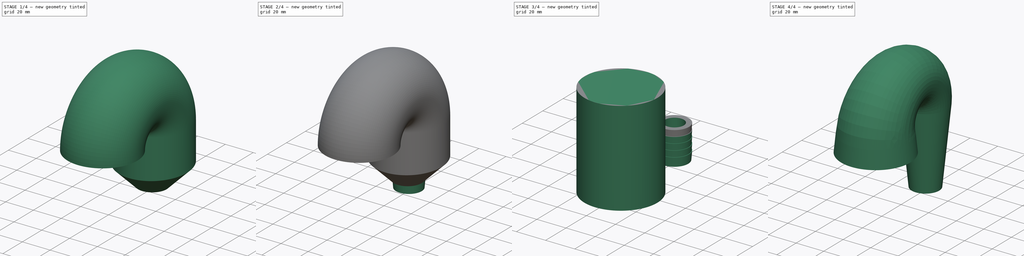
[diagram: build sequence overview — one tinted view per stage of 4, left to right]
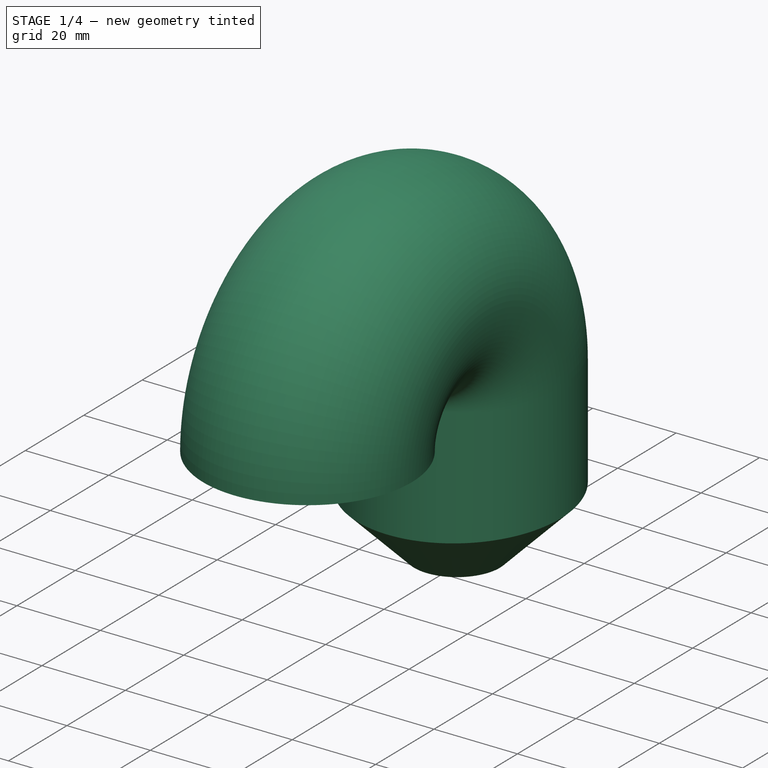
[diagram: stage 1 of 4 — iso view after this stage's code; geometry added in this stage tinted green]
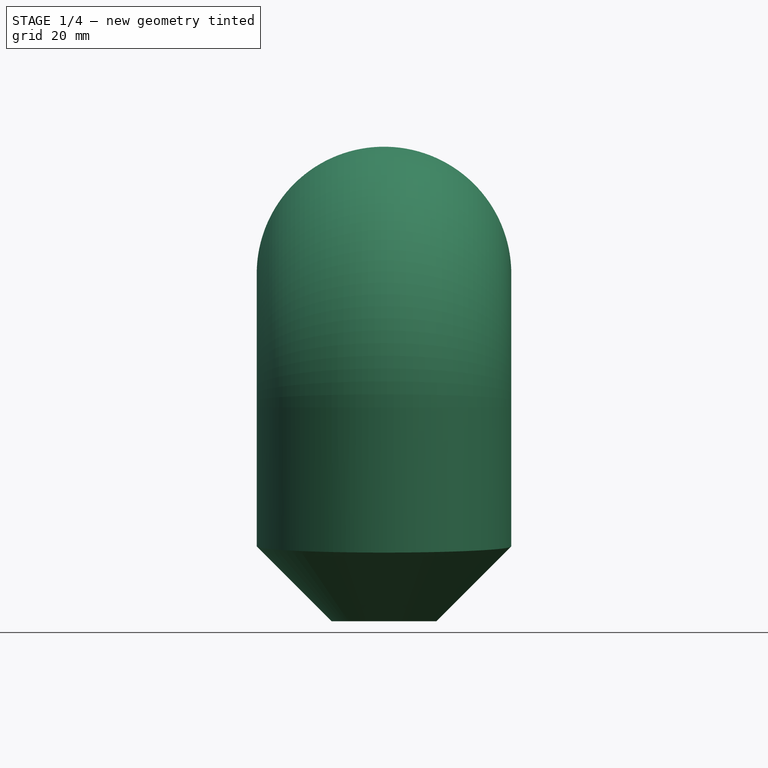
[diagram: stage 1 of 4 — front view after this stage's code; geometry added in this stage tinted green]
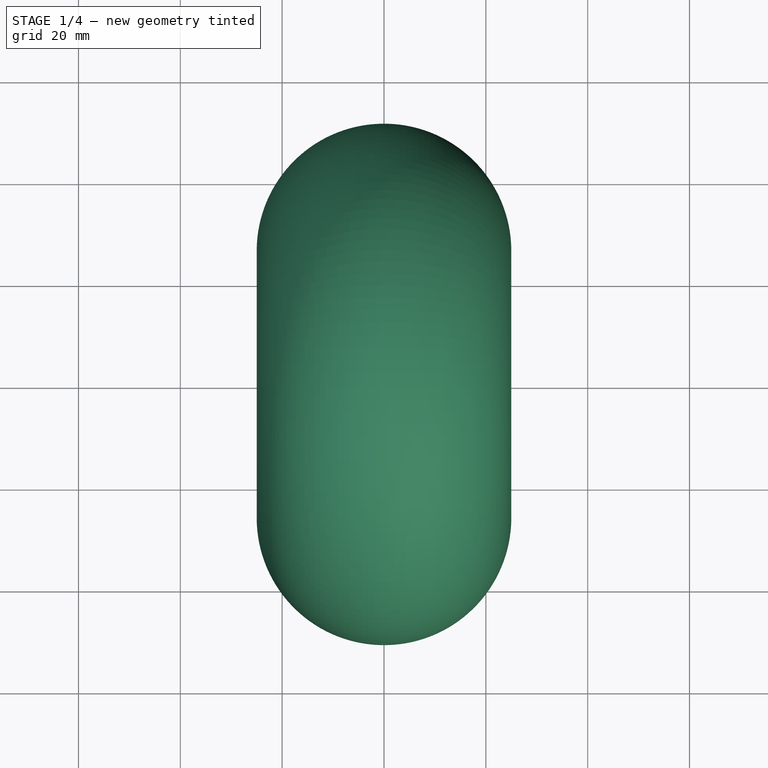
[diagram: stage 1 of 4 — top view after this stage's code; geometry added in this stage tinted green]
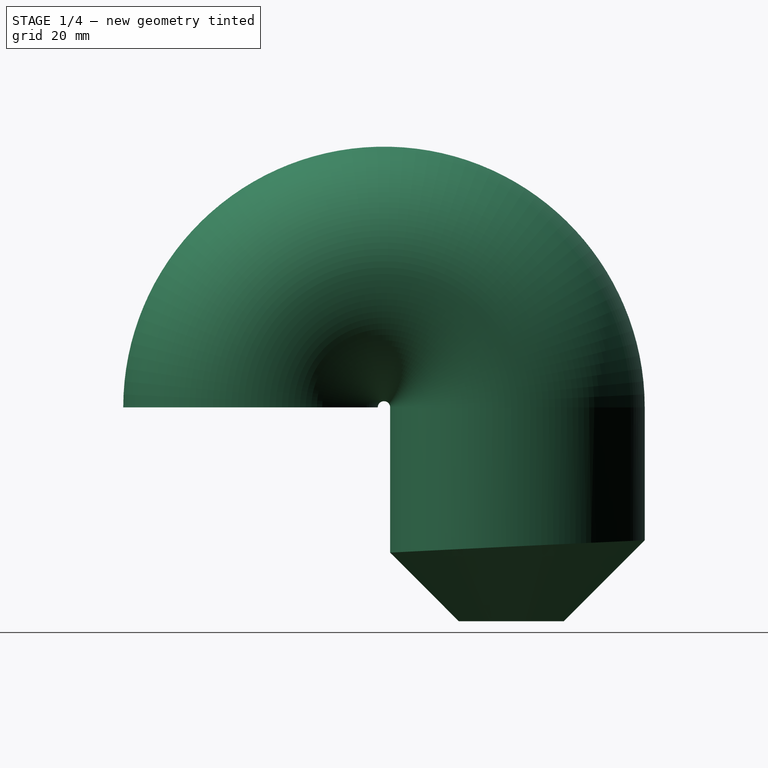
[diagram: stage 1 of 4 — right view after this stage's code; geometry added in this stage tinted green]
FCSTD DOCUMENT  (FreeCAD 1.1R39748 (Git))
Label: п переход
License: All rights reserved
LicenseURL: https://en.wikipedia.org/wiki/All_rights_reserved
objects: Sketcher::SketchObject×9, PartDesign::SubShapeBinder×5, App::Point×4, PartDesign::Body×4, PartDesign::AdditivePipe×2, PartDesign::Revolution×2, Part::DatumLine×2, PartDesign::Thickness×2, PartDesign::LinearPattern×1, PartDesign::Pocket×1, PartDesign::Groove×1
note: 53 computed .brp shape members not serialized (recipe doc carries the construction recipe); baked Part::Feature solids carry a one-line shape summary decoded from their .brp

FEATURE [App::Point] Origin001
  Role = Origin
FEATURE [Sketcher::SketchObject] Sketch
  ArcFitTolerance = 1e-06
  AttachmentSupport = -> [YZ_Plane]
  ExternalTypes = [0]
  FullyConstrained = false
  MakeInternals = false
  MapMode = 5
  Placement = pos=(0,0,0) rot=(0.57735,0.57735,0.57735;2.0944rad)
  sketch-geometry (2):
    g0: ArcOfCircle CenterX=0 CenterY=65 CenterZ=0 NormalX=0 NormalY=0 NormalZ=1 AngleXU=0 Radius=26.2095 StartAngle=0 EndAngle=3.14159
    g1: LineSegment StartX=26.2095 StartY=65 StartZ=0 EndX=26.2095 EndY=23 EndZ=0
  constraints (7):
    c: PointOnObject(g0,g-2)
    c: DistanceY(g-1,g0) = 65
    c: Horizontal(g0,g0)
    c: Horizontal(g0,g0)
    c: Distance(g1) = 42
    c: Coincident(g1,g0)
    c: Vertical(g1)
FEATURE [Sketcher::SketchObject] Sketch001
  ArcFitTolerance = 1e-06
  AttachmentOffset = pos=(0,0,38) rot=(0,0,1;0rad)
  AttachmentSupport = -> [XY_Plane]
  ExternalGeometry = -> [Sketch]
  ExternalTypes = [0]
  FullyConstrained = true
  MakeInternals = false
  MapMode = 5
  Placement = pos=(0,0,38) rot=(0,0,1;0rad)
  sketch-geometry (1):
    g0: Circle CenterX=0 CenterY=26.2095 CenterZ=0 NormalX=0 NormalY=0 NormalZ=1 AngleXU=0 Radius=25
  constraints (2):
    c: Coincident(g0,g-3)
    c: Diameter(g0) = 50
FEATURE [PartDesign::AdditivePipe] AdditivePipe
  AuxilleryCurvelinear = true
  AuxillerySpineTangent = false
  Binormal = (0,0,0)
  Mode = 0
  Profile = -> Sketch001
  Refine = true
  Spine = -> Sketch
  SpineTangent = false
  Suppressed = false
  Transformation = 0
  Transition = 1
FEATURE [Sketcher::SketchObject] Sketch005
  ArcFitTolerance = 1e-06
  AttachmentSupport = -> [YZ_Plane]
  ExternalGeometry = -> [AdditivePipe]
  ExternalTypes = [0]
  FullyConstrained = true
  MakeInternals = false
  MapMode = 5
  Placement = pos=(0,0,0) rot=(0.57735,0.57735,0.57735;2.0944rad)
  sketch-geometry (8):
    g0: GeomPoint [constr] X=17.1145 Y=23 Z=0
    g1: GeomPoint [constr] X=35.3045 Y=23 Z=0
    g2: LineSegment StartX=26.2095 StartY=13.905 StartZ=0 EndX=51.2095 EndY=38.905 EndZ=0
    g3: LineSegment StartX=51.2095 StartY=38.905 StartZ=0 EndX=51.2095 EndY=13.905 EndZ=0
    g4: LineSegment StartX=51.2095 StartY=13.905 StartZ=0 EndX=26.2095 EndY=13.905 EndZ=0
    g5: LineSegment [constr] StartX=1.20954 StartY=13.905 StartZ=0 EndX=1.20954 EndY=38.905 EndZ=0
    g6: LineSegment [constr] StartX=1.20954 StartY=38.905 StartZ=0 EndX=26.2095 EndY=13.905 EndZ=0
    g7: LineSegment [constr] StartX=26.2095 StartY=13.905 StartZ=0 EndX=1.20954 EndY=13.905 EndZ=0
  constraints (21):
    c: Distance(g0,g1) = 18.19
    c: PointOnObject(g1,g-3)
    c: PointOnObject(g0,g-3)
    c: Coincident(g2,g3)
    c: Coincident(g3,g4)
    c: Coincident(g4,g2)
    c: Horizontal(g4)
    c: Coincident(g5,g6)
    c: Coincident(g6,g7)
    c: Coincident(g7,g5)
    c: Coincident(g6,g2)
    c: PointOnObject(g-3,g3)
    c: PointOnObject(g-3,g5)
    c: PointOnObject(g0,g6)
    c: PointOnObject(g1,g2)
    c: Equal(g4,g7)
    c: Horizontal(g7)
    c: Vertical(g3)
    c: Equal(g6,g2)
    c: Vertical(g5)
    c: Angle(g5,g6) = 0.785398
FEATURE [Part::DatumLine] Line001
  AttacherType = Attacher::AttachEngineLine
  AttachmentOffset = pos=(0,0,25) rot=(1,0,0;1.5708rad)
  AttachmentSupport = -> [Origin,AdditivePipe]
  MapMode = 31
  Placement = pos=(-9.49e-14,25,23) rot=(0,1,0;3.14159rad)
FEATURE [PartDesign::Groove] Groove
  Angle = 360
  Angle2 = 60
  Axis = (0,0,-1)
  Base = (-9.49e-14,25,23)
  BaseFeature = -> AdditivePipe
  Profile = -> Sketch005
  ReferenceAxis = -> Line001
  Refine = true
  Suppressed = false
  Type = 0
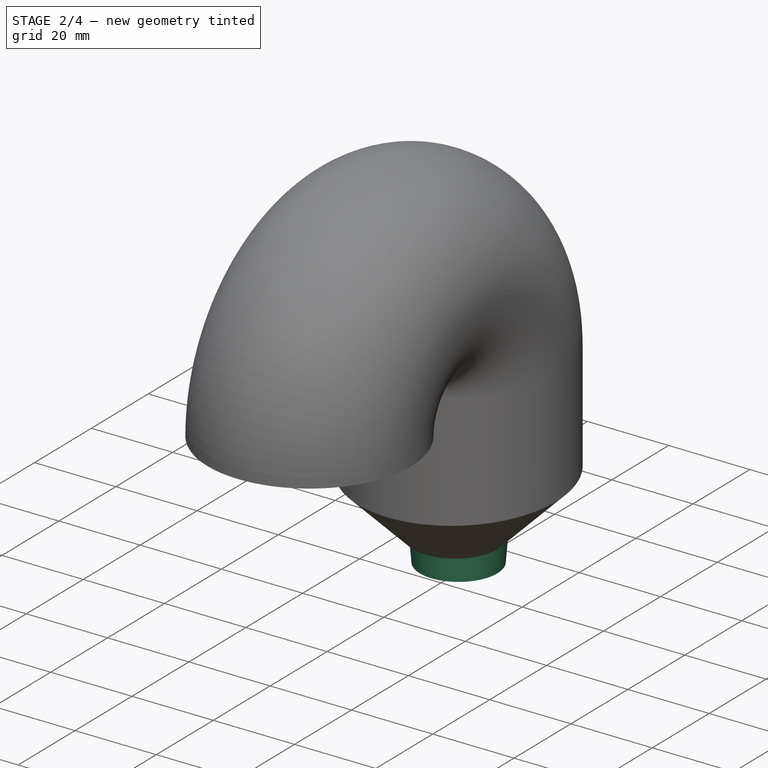
[diagram: stage 2 of 4 — iso view after this stage's code; geometry added in this stage tinted green]
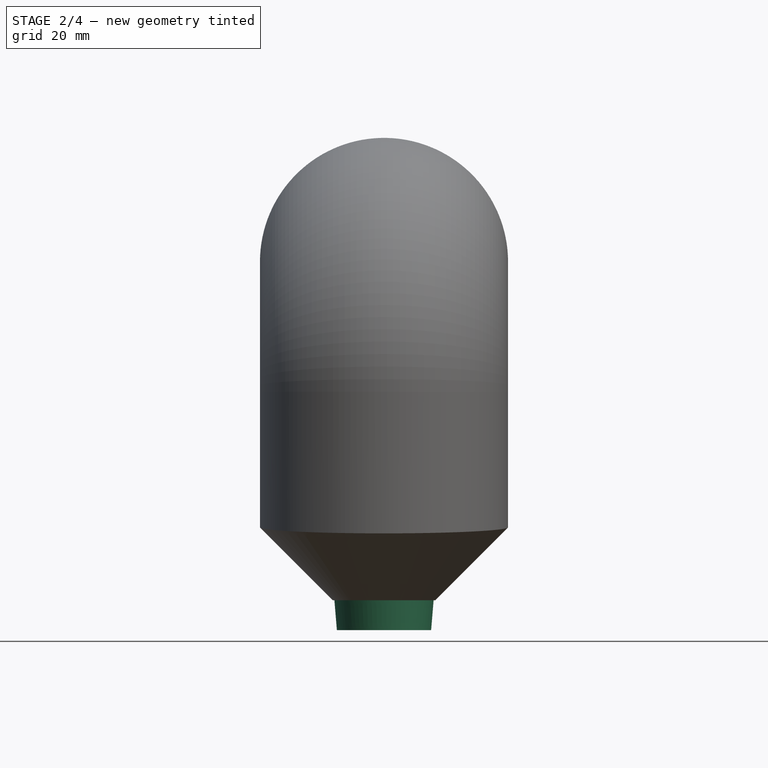
[diagram: stage 2 of 4 — front view after this stage's code; geometry added in this stage tinted green]
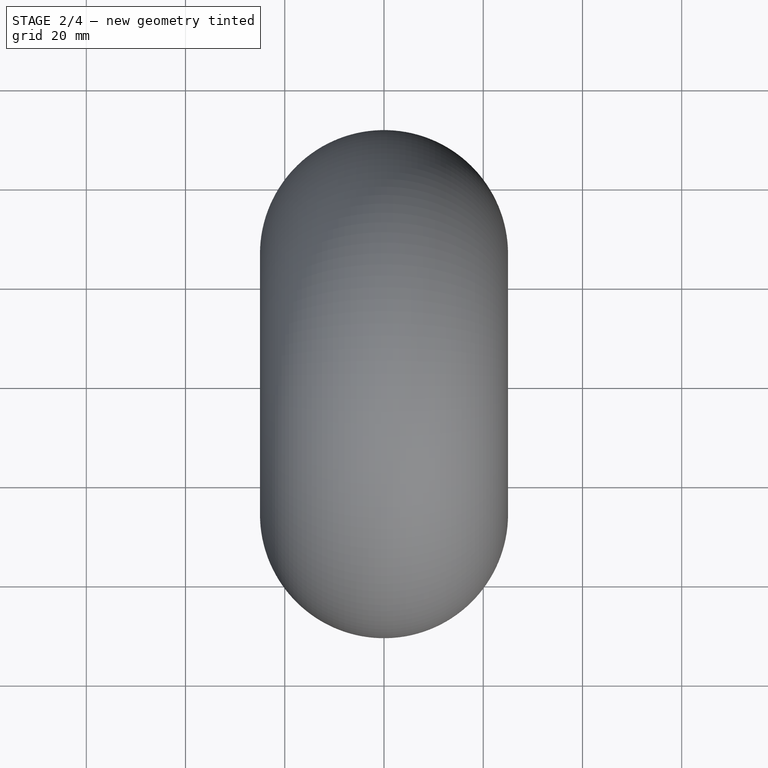
[diagram: stage 2 of 4 — top view after this stage's code; geometry added in this stage tinted green]
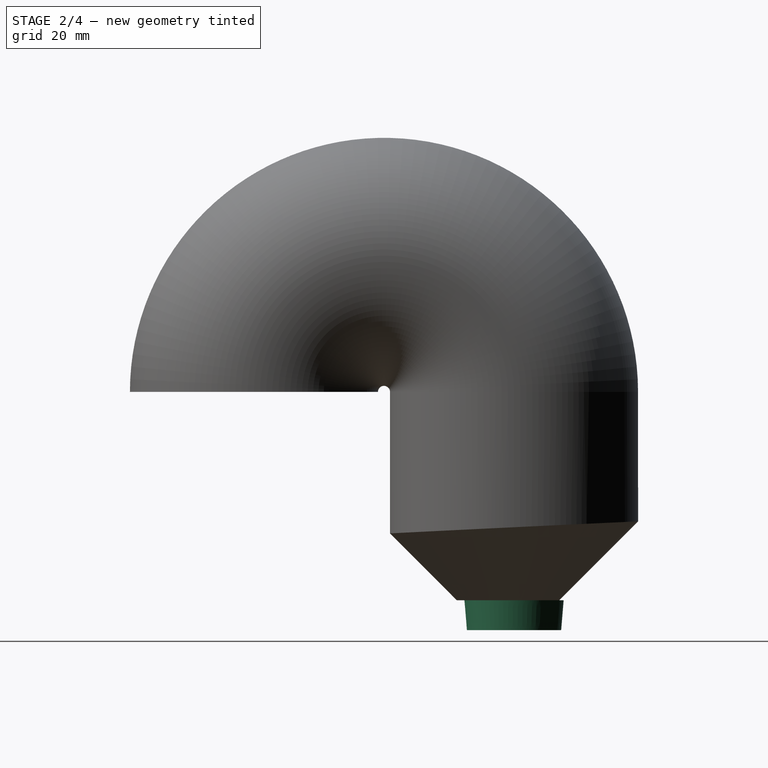
[diagram: stage 2 of 4 — right view after this stage's code; geometry added in this stage tinted green]
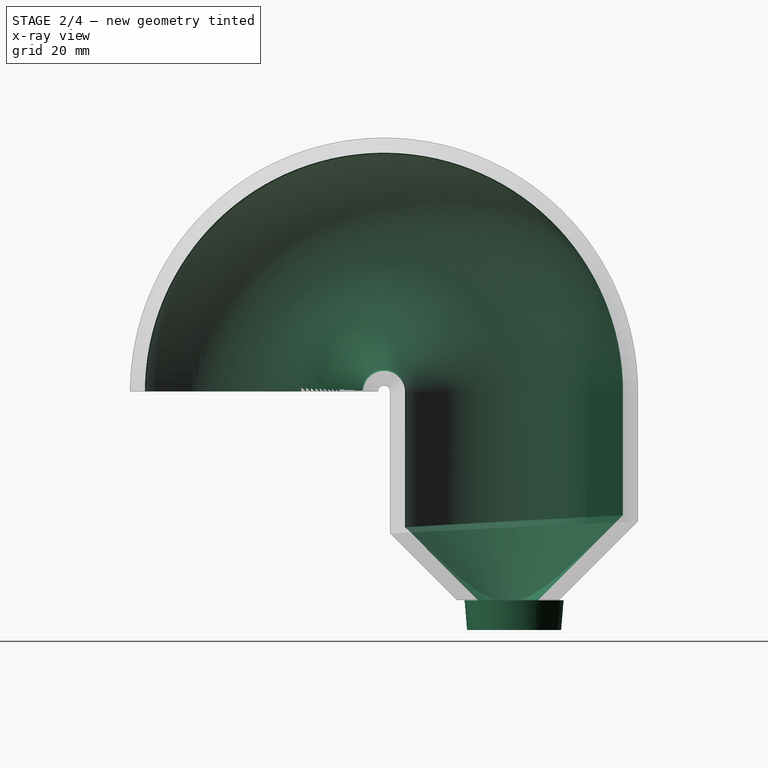
[diagram: stage 2 of 4 — x-ray composite at the right view; earlier geometry ghosted, this stage's added geometry solid]
FEATURE [App::Point] Origin003  label="Origin"
  Role = Origin
FEATURE [Sketcher::SketchObject] Sketch002
  ArcFitTolerance = 1e-06
  AttachmentSupport = -> [YZ_Plane001]
  ExternalTypes = [0,0]
  FullyConstrained = true
  MakeInternals = false
  MapMode = 5
  Placement = pos=(0,0,0) rot=(0.57735,0.57735,0.57735;2.0944rad)
  sketch-geometry (8):
    g0: LineSegment [constr] StartX=16.2095 StartY=23 StartZ=0 EndX=16.7095 EndY=17 EndZ=0
    g1: LineSegment [constr] StartX=16.7095 StartY=17 StartZ=0 EndX=26.2095 EndY=17 EndZ=0
    g2: LineSegment [constr] StartX=26.2095 StartY=17 StartZ=0 EndX=26.2095 EndY=23 EndZ=0
    g3: LineSegment [constr] StartX=26.2095 StartY=23 StartZ=0 EndX=16.2095 EndY=23 EndZ=0
    g4: LineSegment StartX=26.2095 StartY=23 StartZ=0 EndX=26.2095 EndY=17 EndZ=0
    g5: LineSegment StartX=26.2095 StartY=17 StartZ=0 EndX=35.7095 EndY=17 EndZ=0
    g6: LineSegment StartX=35.7095 StartY=17 StartZ=0 EndX=36.2095 EndY=23 EndZ=0
    g7: LineSegment StartX=36.2095 StartY=23 StartZ=0 EndX=26.2095 EndY=23 EndZ=0
  constraints (21):
    c: Coincident(g0,g1)
    c: Horizontal(g1)
    c: Coincident(g1,g2)
    c: Coincident(g2,g3)
    c: Vertical(g4)
    c: Coincident(g4,g5)
    c: Coincident(g5,g6)
    c: Coincident(g7,g4)
    c: Horizontal(g5)
    c: Coincident(g4,g2)
    c: Coincident(g1,g4)
    c: DistanceY(g6,g6) = 6
    c: DistanceX(g0,g5) = 19
    c: Equal(g0,g6)
    c: Coincident(g2,g-4)
    c: Coincident(g6,g7)
    c: PointOnObject(g6,g-3)
    c: Coincident(g0,g3)
    c: PointOnObject(g0,g-3)
    c: DistanceX(g0,g6) = 20
    c: Equal(g7,g3)
FEATURE [PartDesign::Revolution] Revolution
  Angle = 360
  Angle2 = 60
  Axis = (0,0,-1)
  Base = (0,26.2095,23)
  Placement = pos=(0,0,0) rot=(1,1,1;2.0944rad)
  Profile = -> Sketch002
  ReferenceAxis = -> Sketch002 [Edge1]
  Refine = true
  Reversed = true
  Suppressed = false
  Type = 0
FEATURE [PartDesign::Thickness] Thickness001
  Base = -> Groove [Face1,Face5]
  BaseFeature = -> Groove
  Intersection = true
  Join = 0
  Mode = 0
  Refine = true
  Reversed = true
  SupportTransform = false
  Suppressed = false
  Value = 3
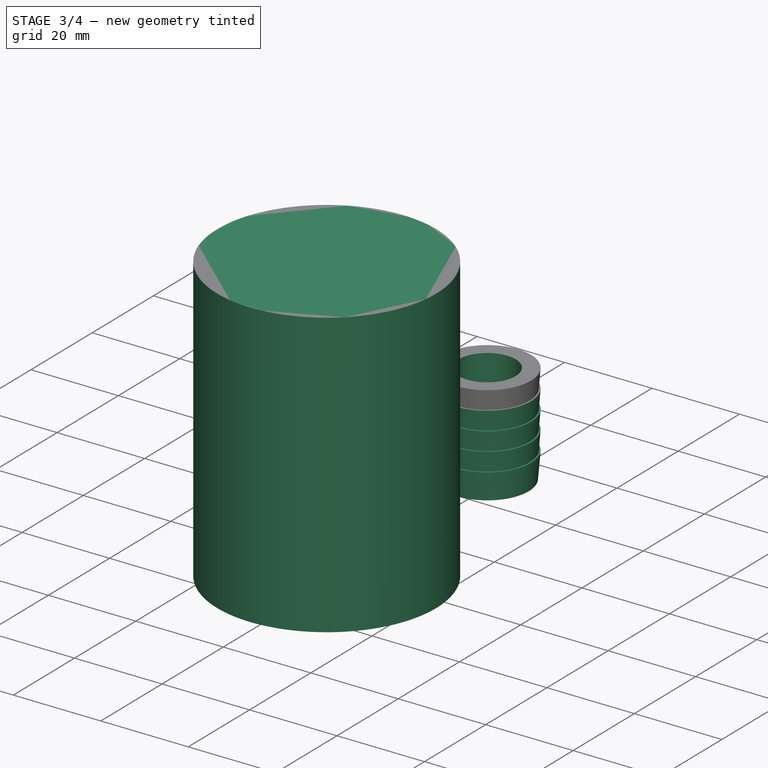
[diagram: stage 3 of 4 — iso view after this stage's code; geometry added in this stage tinted green]
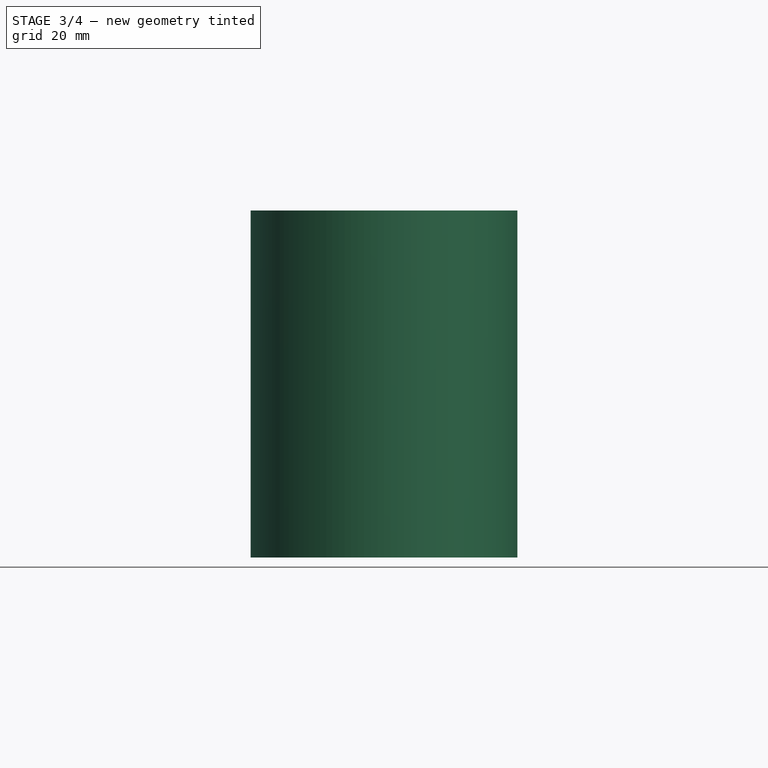
[diagram: stage 3 of 4 — front view after this stage's code; geometry added in this stage tinted green]
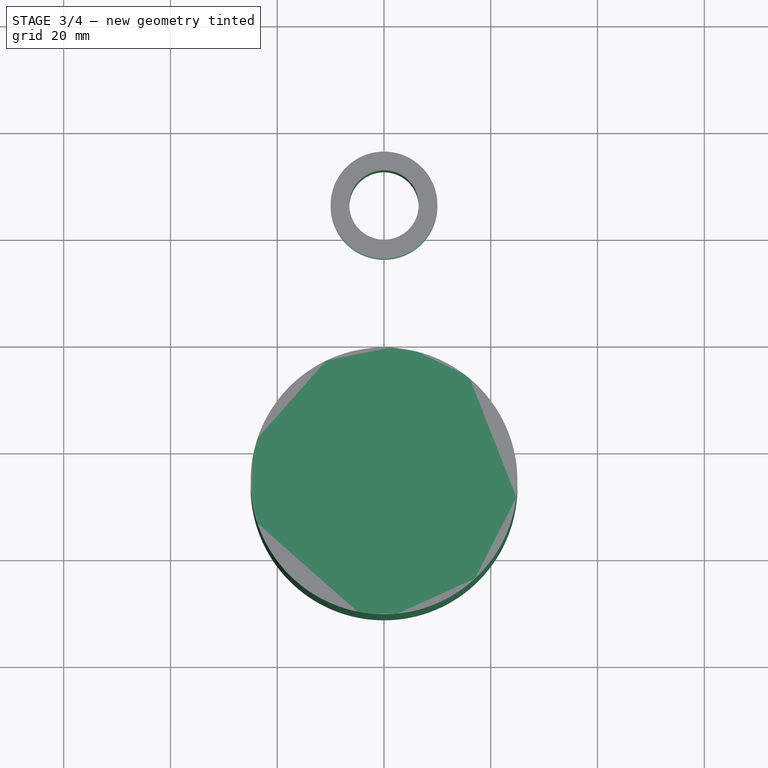
[diagram: stage 3 of 4 — top view after this stage's code; geometry added in this stage tinted green]
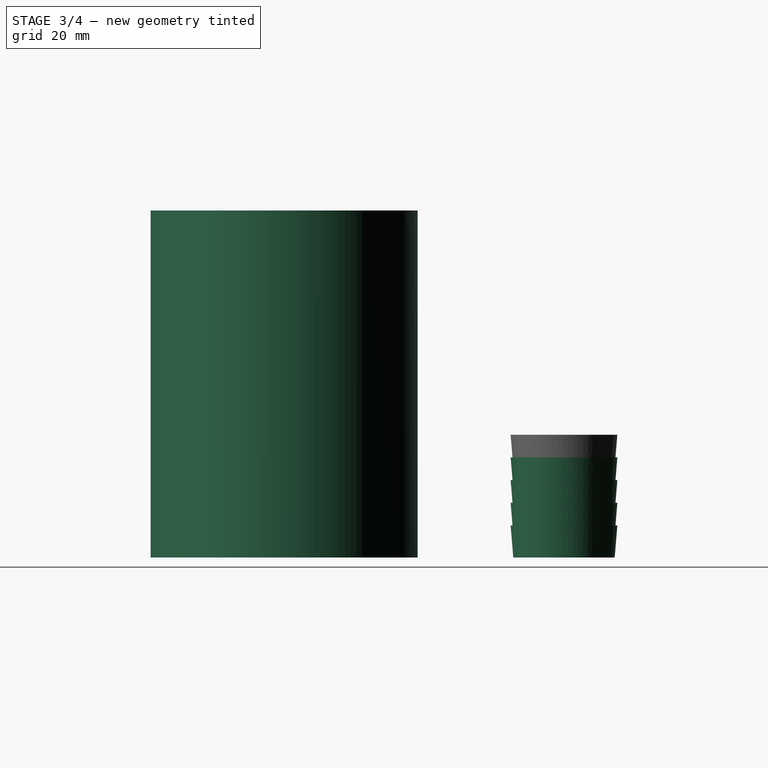
[diagram: stage 3 of 4 — right view after this stage's code; geometry added in this stage tinted green]
FEATURE [PartDesign::LinearPattern] LinearPattern
  BaseFeature = -> Revolution
  Direction = -> Y_Axis001
  Length = 17
  Mode = 0
  Occurrences = 5
  Offset = 4.25
  Originals = -> [Revolution]
  Placement = pos=(0,0,0) rot=(1,1,1;2.0944rad)
  Refine = true
  Suppressed = false
  TransformMode = 0
FEATURE [App::Point] Origin005
  Role = Origin
FEATURE [PartDesign::SubShapeBinder] Binder001
  BindCopyOnChange = 0
  BindMode = 0
  ClaimChildren = false
  Context = -> Body002 [Binder001.]
  Fuse = false
  MakeFace = true
  OffsetFill = false
  OffsetIntersection = false
  OffsetJoinType = 0
  OffsetOpenResult = false
  PartialLoad = false
  Refine = true
  Relative = true
  Support = -> [Body[AdditivePipe.Face5]]
  _Version = 2
FEATURE [PartDesign::SubShapeBinder] Binder002
  BindCopyOnChange = 0
  BindMode = 0
  ClaimChildren = false
  Context = -> Body002 [Binder002.]
  Fuse = false
  MakeFace = true
  OffsetFill = false
  OffsetIntersection = false
  OffsetJoinType = 0
  OffsetOpenResult = false
  PartialLoad = false
  Refine = true
  Relative = true
  Support = -> [Body[AdditivePipe.Edge5]]
  _Version = 2
FEATURE [Sketcher::SketchObject] Sketch003
  ArcFitTolerance = 1e-06
  AttachmentSupport = -> [YZ_Plane002]
  ExternalGeometry = -> [Binder001,Binder002]
  ExternalTypes = [0,0]
  FullyConstrained = true
  MakeInternals = false
  MapMode = 5
  Placement = pos=(0,0,0) rot=(0.57735,0.57735,0.57735;2.0944rad)
  sketch-geometry (5):
    g0: LineSegment StartX=-26.2095 StartY=50 StartZ=0 EndX=-26.2095 EndY=0 EndZ=0
    g1: LineSegment StartX=-26.2095 StartY=0 StartZ=0 EndX=-1.20954 EndY=0 EndZ=0
    g2: LineSegment StartX=-1.20954 StartY=0 StartZ=0 EndX=-1.20954 EndY=65 EndZ=0
    g3: LineSegment StartX=-26.2095 StartY=50 StartZ=0 EndX=-26.2095 EndY=65 EndZ=0
    g4: LineSegment StartX=-26.2095 StartY=65 StartZ=0 EndX=-1.20954 EndY=65 EndZ=0
  constraints (12):
    c: PointOnObject(g0,g-1)
    c: Vertical(g0)
    c: Coincident(g0,g1)
    c: Coincident(g1,g2)
    c: Horizontal(g1)
    c: DistanceX(g1,g1) = 25
    c: Symmetric(g-3,g-3,g0)
    c: Coincident(g0,g3)
    c: Symmetric(g-4,g-4,g3)
    c: Coincident(g3,g4)
    c: Coincident(g4,g-4)
    c: Coincident(g2,g4)
FEATURE [PartDesign::Revolution] Revolution001
  Angle = 360
  Angle2 = 60
  Axis = (0,0,-1)
  Base = (0,-26.2095,50)
  Placement = pos=(0,0,0) rot=(1,1,1;2.0944rad)
  Profile = -> Sketch003
  ReferenceAxis = -> Sketch003 [Edge1]
  Refine = true
  Suppressed = false
  Type = 0
FEATURE [Sketcher::SketchObject] Sketch004
  ArcFitTolerance = 1e-06
  AttachmentSupport = -> [LinearPattern]
  ExternalGeometry = -> [LinearPattern]
  ExternalTypes = [0]
  FullyConstrained = true
  MakeInternals = false
  MapMode = 5
  Placement = pos=(0,0,-6.5e-15) rot=(0.707107,0.707107,0;3.14159rad)
  sketch-geometry (1):
    g0: Circle CenterX=26.2095 CenterY=-1.08e-14 CenterZ=0 NormalX=0 NormalY=0 NormalZ=1 AngleXU=0 Radius=6.5
  constraints (2):
    c: Coincident(g0,g-3)
    c: Distance(g0,g-3) = 3
FEATURE [PartDesign::Pocket] Pocket
  BaseFeature = -> LinearPattern
  Direction = (0,0,1)
  Length = 5
  Length2 = 5
  Placement = pos=(0,0,0) rot=(1,1,1;2.0944rad)
  Profile = -> Sketch004
  ReferenceAxis = -> Sketch004 [N_Axis]
  Refine = true
  Suppressed = false
  Type = 1
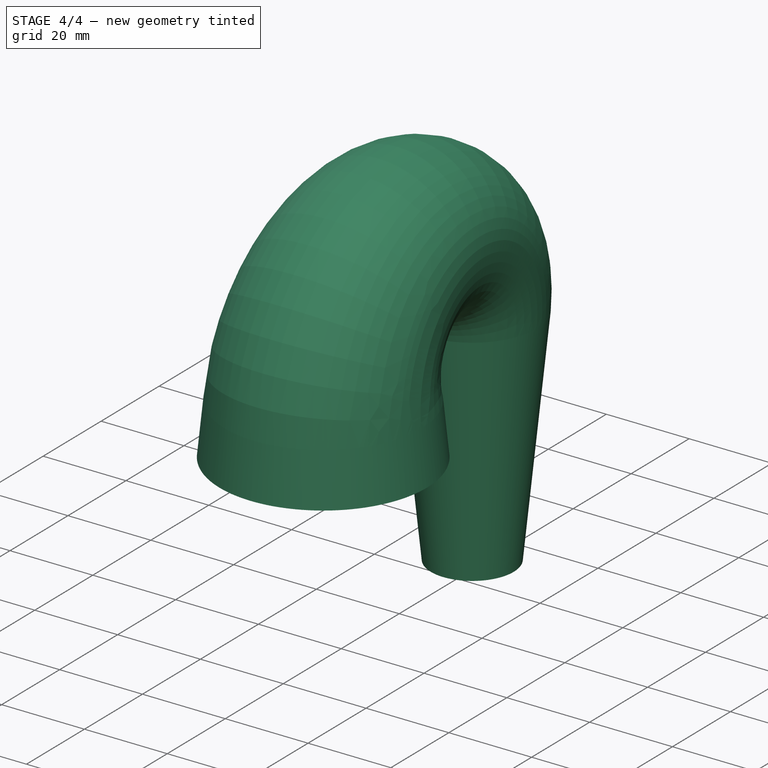
[diagram: stage 4 of 4 — iso view after this stage's code; geometry added in this stage tinted green]
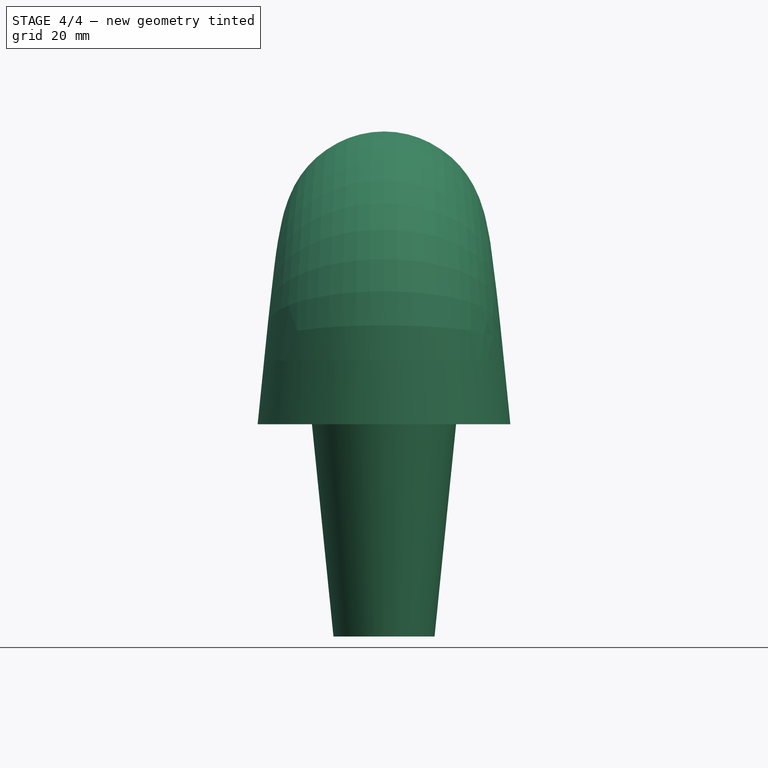
[diagram: stage 4 of 4 — front view after this stage's code; geometry added in this stage tinted green]
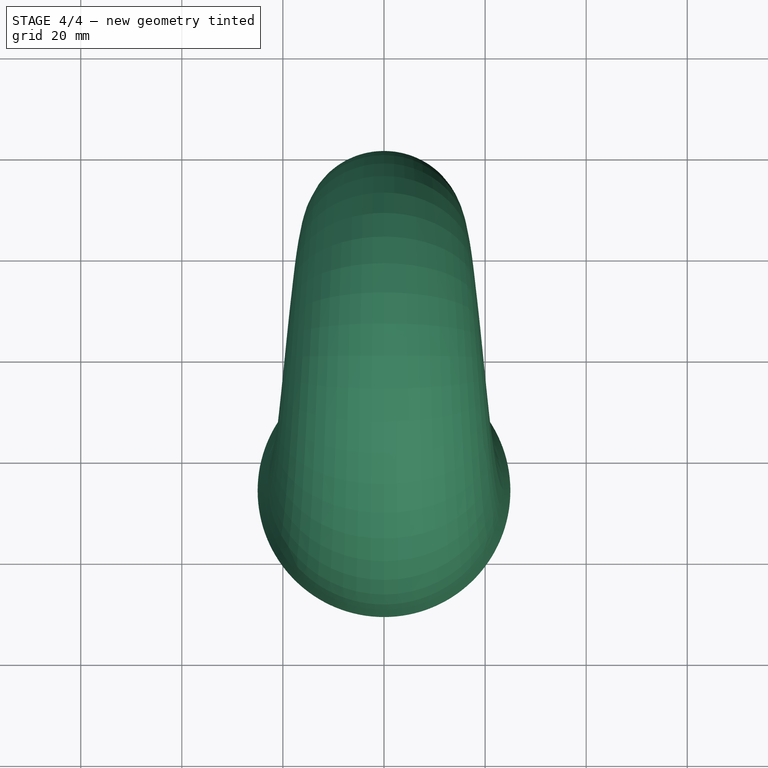
[diagram: stage 4 of 4 — top view after this stage's code; geometry added in this stage tinted green]
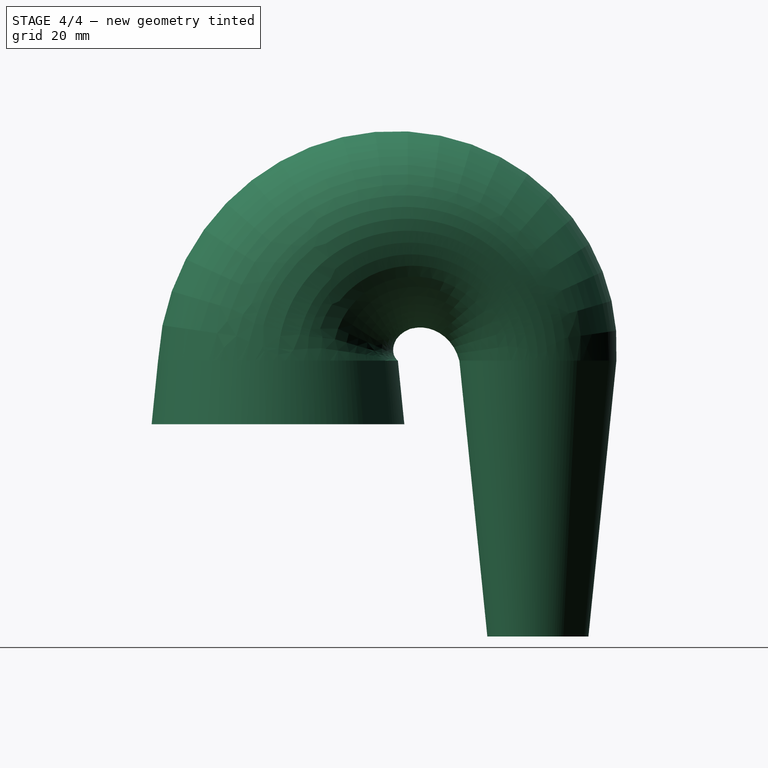
[diagram: stage 4 of 4 — right view after this stage's code; geometry added in this stage tinted green]
FEATURE [PartDesign::Body] Body  label="Тело"
  AllowCompound = false
  Group = -> [Sketch,Sketch001,AdditivePipe,Sketch005,Line001,Groove,Thickness001]
  Origin = -> Origin
  Tip = -> Thickness001
FEATURE [PartDesign::Thickness] Thickness
  Base = -> Revolution001 [Face1,Face3]
  BaseFeature = -> Revolution001
  Intersection = false
  Join = 1
  Mode = 0
  Refine = true
  Reversed = true
  SupportTransform = false
  Suppressed = false
  Value = 3
FEATURE [PartDesign::Body] Body002  label="Тело002"
  AllowCompound = false
  Group = -> [Sketch003,Revolution001,Binder001,Binder002,Thickness]
  Origin = -> Origin004
  Tip = -> Thickness
FEATURE [PartDesign::SubShapeBinder] Binder
  BindCopyOnChange = 0
  BindMode = 0
  ClaimChildren = false
  Context = -> Body001 [Binder.]
  Fuse = false
  MakeFace = true
  OffsetFill = false
  OffsetIntersection = false
  OffsetJoinType = 0
  OffsetOpenResult = false
  PartialLoad = false
  Refine = true
  Relative = true
  Support = -> [Body[Thickness001.Face7]]
  _Version = 2
FEATURE [Part::DatumLine] Line
  AttacherType = Attacher::AttachEngineLine
  AttachmentSupport = -> [Binder]
  MapMode = 42
  Placement = pos=(-9.41e-14,26,4.97e-14) rot=(0,0,1;0rad)
FEATURE [PartDesign::Body] Body001  label="Тело001"
  AllowCompound = false
  Group = -> [Sketch002,Revolution,LinearPattern,Sketch004,Pocket,Binder,Line]
  Origin = -> Origin002
  Placement = pos=(0,-1,0) rot=(0,0,1;0rad)
  Tip = -> Pocket
FEATURE [App::Point] Origin007
  Role = Origin
FEATURE [PartDesign::SubShapeBinder] Binder003
  BindCopyOnChange = 0
  BindMode = 0
  ClaimChildren = false
  Context = -> Body003 [Binder003.]
  Fuse = false
  MakeFace = true
  OffsetFill = false
  OffsetIntersection = false
  OffsetJoinType = 0
  OffsetOpenResult = false
  PartialLoad = false
  Refine = true
  Relative = true
  Support = -> [Body002[Thickness.Face4]]
  _Version = 2
FEATURE [PartDesign::SubShapeBinder] Binder004
  BindCopyOnChange = 0
  BindMode = 0
  ClaimChildren = false
  Context = -> Body003 [Binder004.]
  Fuse = false
  MakeFace = true
  OffsetFill = false
  OffsetIntersection = false
  OffsetJoinType = 0
  OffsetOpenResult = false
  PartialLoad = false
  Refine = true
  Relative = true
  Support = -> [Body001[Pocket.Face3]]
  _Version = 2
FEATURE [Sketcher::SketchObject] Sketch007
  ArcFitTolerance = 1e-06
  AttachmentSupport = -> [Binder003]
  ExternalGeometry = -> [Binder003]
  ExternalTypes = [0]
  FullyConstrained = true
  MakeInternals = false
  MapMode = 5
  Placement = pos=(-2.16e-14,7.2e-15,65) rot=(0,0,1;0rad)
FEATURE [Sketcher::SketchObject] Sketch008
  ArcFitTolerance = 1e-06
  AttachmentSupport = -> [Binder004]
  ExternalGeometry = -> [Binder004]
  ExternalTypes = [0]
  FullyConstrained = true
  MakeInternals = false
  MapMode = 5
  Placement = pos=(-1.53e-14,5.1e-15,23) rot=(0,0,1;0rad)
FEATURE [Sketcher::SketchObject] Sketch009
  ArcFitTolerance = 1e-06
  AttachmentSupport = -> [YZ_Plane003]
  ExternalGeometry = -> [Binder003,Binder004]
  ExternalTypes = [0,0]
  FullyConstrained = false
  MakeInternals = false
  MapMode = 5
  Placement = pos=(0,0,0) rot=(0.57735,0.57735,0.57735;2.0944rad)
  sketch-geometry (5):
    g0: GeomPoint X=-26.2095 Y=65 Z=0
    g1: GeomPoint X=25.2095 Y=23 Z=0
    g2: ArcOfCircle CenterX=-0.5 CenterY=77.5841 CenterZ=0 NormalX=0 NormalY=0 NormalZ=1 AngleXU=0 Radius=25.7095 StartAngle=0 EndAngle=3.14159
    g3: LineSegment StartX=25.2095 StartY=23 StartZ=0 EndX=25.2095 EndY=77.5841 EndZ=0
    g4: LineSegment StartX=-26.2095 StartY=65 StartZ=0 EndX=-26.2095 EndY=77.5841 EndZ=0
  constraints (8):
    c: Symmetric(g-3,g-3,g0)
    c: Symmetric(g-4,g-4,g1)
    c: Coincident(g3,g1)
    c: Vertical(g3)
    c: Coincident(g4,g0)
    c: Tangent(g4,g2) = 1.5708
    c: Vertical(g4)
    c: Tangent(g3,g2) = -1.5708
FEATURE [PartDesign::AdditivePipe] AdditivePipe001
  AuxilleryCurvelinear = true
  AuxillerySpineTangent = false
  Binormal = (0,0,0)
  Mode = 0
  Profile = -> Sketch007
  Refine = true
  Sections = -> [Sketch008]
  Spine = -> Sketch009 [Edge3,Edge2,Edge1]
  SpineTangent = false
  Suppressed = false
  Transformation = 1
  Transition = 0
FEATURE [PartDesign::Body] Body003  label="Тело003"
  AllowCompound = false
  Group = -> [Binder003,Binder004,Sketch007,Sketch008,Sketch009,AdditivePipe001]
  Origin = -> Origin006
  Tip = -> AdditivePipe001
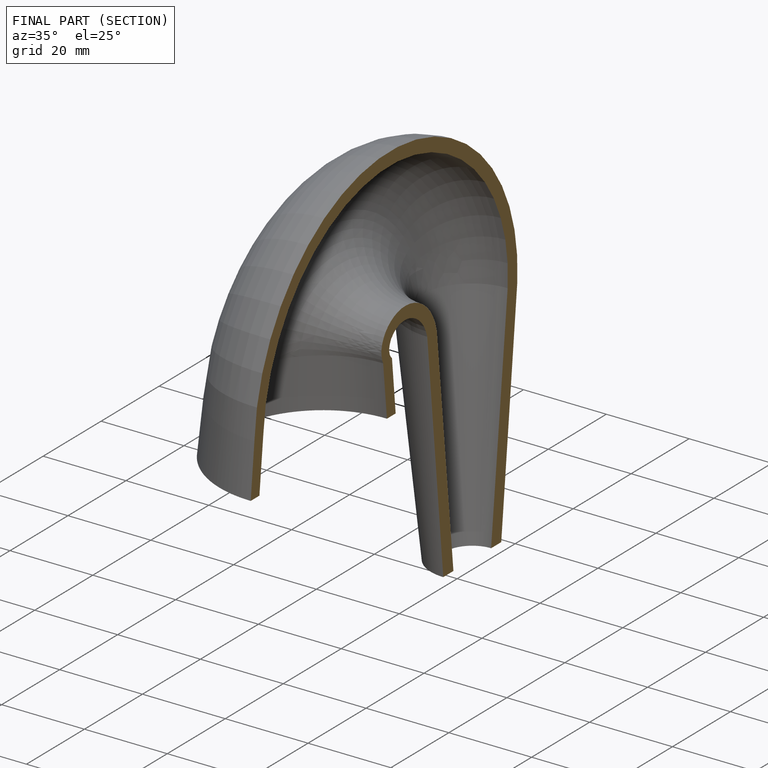
[diagram: finished part — half-section view (interior)]
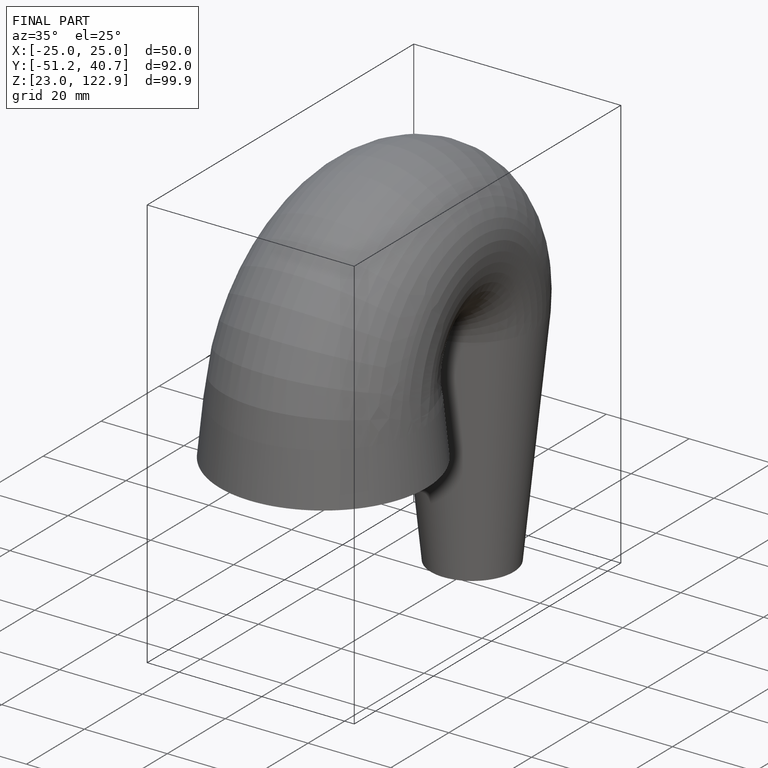
[diagram: finished part — iso view with bounding-box wireframe]
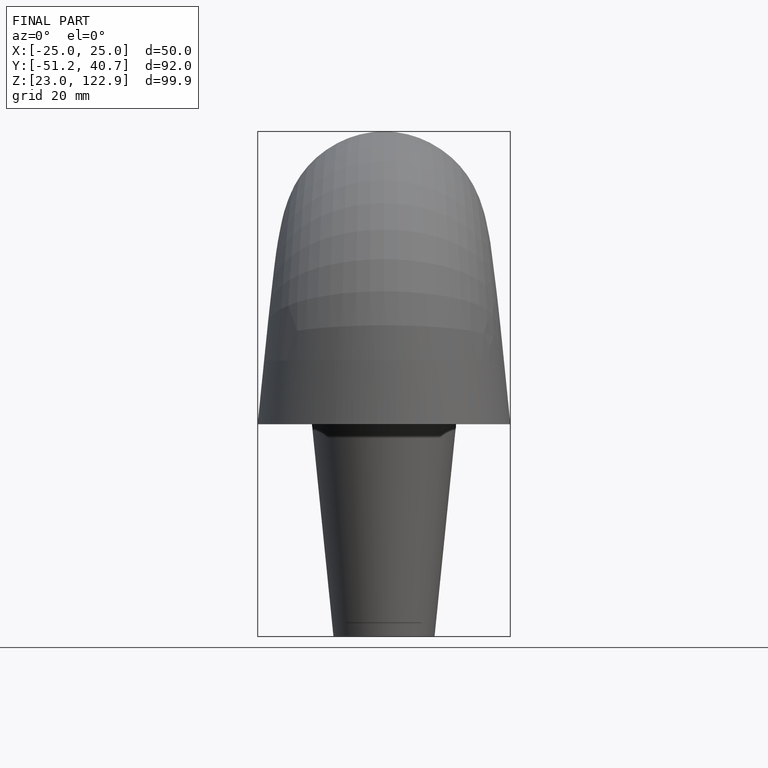
[diagram: finished part — front view with bounding-box wireframe]
